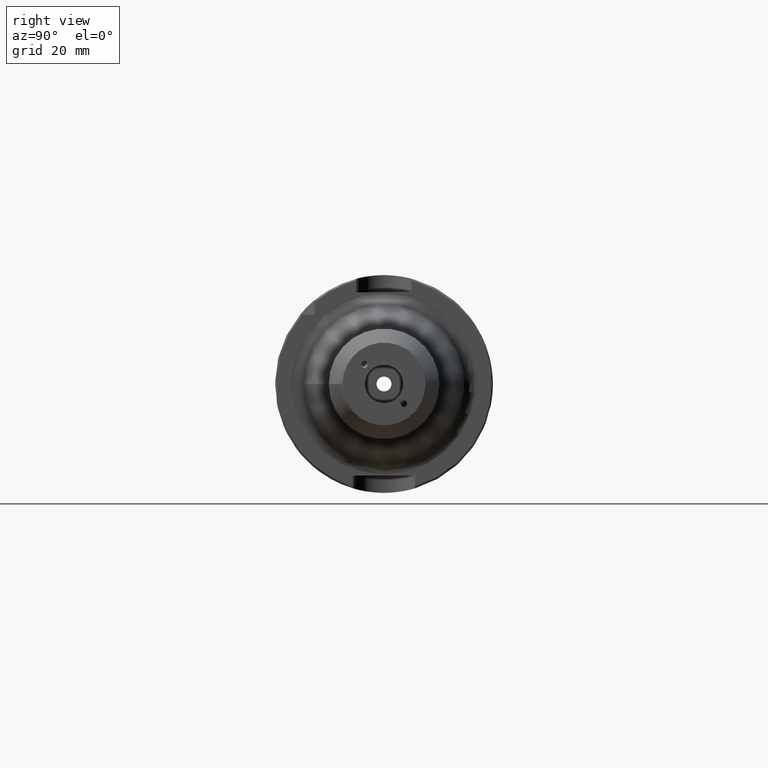
[diagram: clean part render]
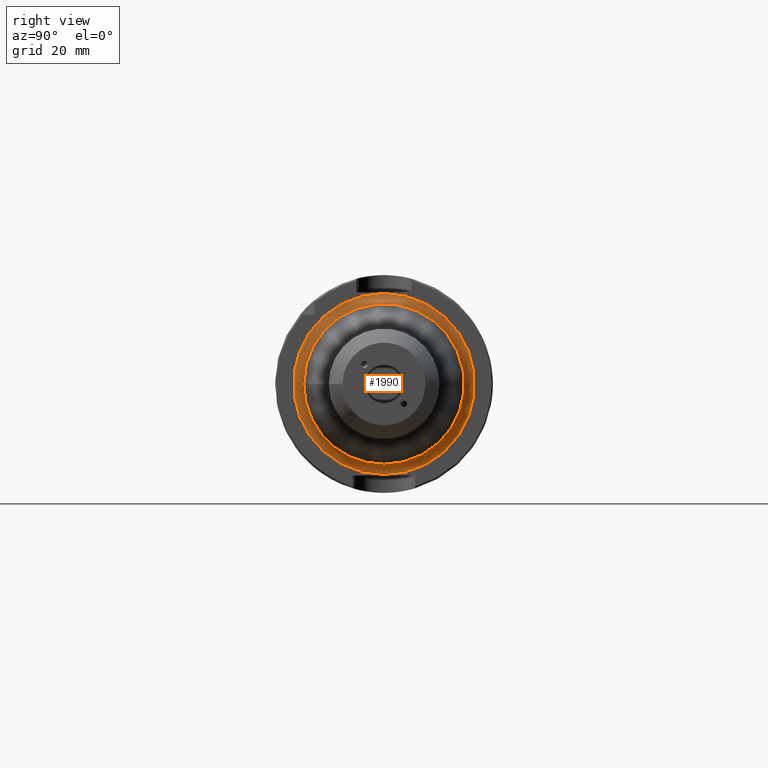
[diagram: same view with one face highlighted and labeled with its STEP entity id]
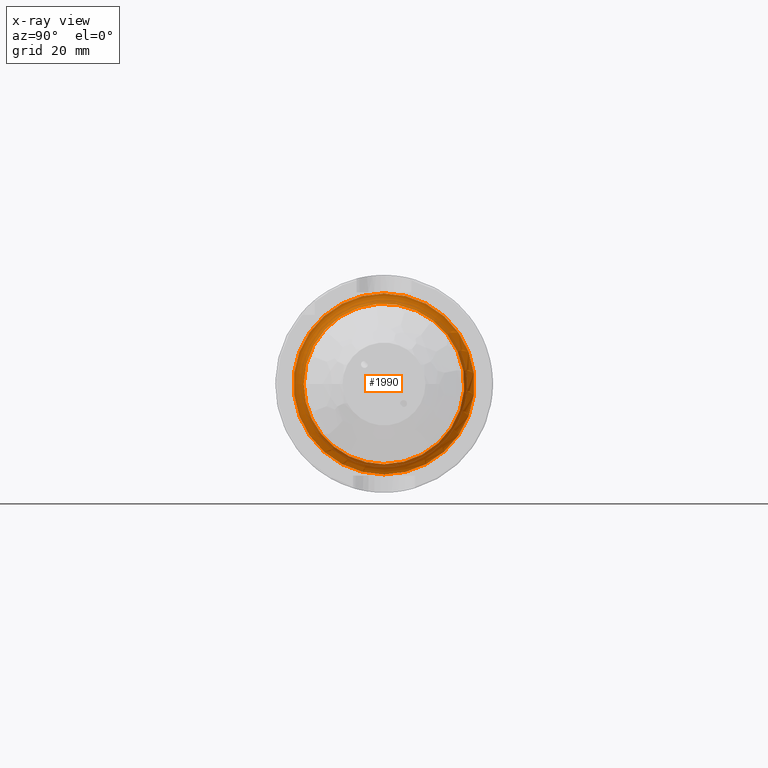
[diagram: x-ray of the same camera — body ghosted, the highlighted face saturated]
A machine part, right view. The second image highlights one B-rep face of the part: STEP entity #1990.
The next image is the same camera in x-ray: the body ghosted, the highlighted face saturated — about 0% of this face is hidden behind the body in this view.
In plain terms, the highlighted toroidal blend (fillet) surface has major radius 26.1971 mm and minor (blend) radius 3 mm.
Its self-contained STEP definition (entity closure, byte-faithful):
#144=TOROIDAL_SURFACE('',#2137,26.1970652873778,3.);
#216=FACE_OUTER_BOUND('',#336,.T.);
#336=EDGE_LOOP('',(#1348,#1349,#1350,#1351,#1352));
#689=CIRCLE('',#2138,23.2262610811531);
#690=CIRCLE('',#2139,3.);
#691=CIRCLE('',#2140,26.1970652873778);
#692=CIRCLE('',#2141,23.2262610811531);
#817=VERTEX_POINT('',#3018);
#818=VERTEX_POINT('',#3019);
#819=VERTEX_POINT('',#3021);
#1025=EDGE_CURVE('',#817,#818,#689,.T.);
#1026=EDGE_CURVE('',#818,#819,#690,.T.);
#1027=EDGE_CURVE('',#819,#819,#691,.T.);
#1028=EDGE_CURVE('',#818,#817,#692,.T.);
#1348=ORIENTED_EDGE('',*,*,#1025,.T.);
#1349=ORIENTED_EDGE('',*,*,#1026,.T.);
#1350=ORIENTED_EDGE('',*,*,#1027,.T.);
#1351=ORIENTED_EDGE('',*,*,#1026,.F.);
#1352=ORIENTED_EDGE('',*,*,#1028,.T.);
#1990=ADVANCED_FACE('',(#216),#144,.F.);
#2137=AXIS2_PLACEMENT_3D('',#3017,#2403,#2404);
#2138=AXIS2_PLACEMENT_3D('',#3020,#2405,#2406);
#2139=AXIS2_PLACEMENT_3D('',#3022,#2407,#2408);
#2140=AXIS2_PLACEMENT_3D('',#3023,#2409,#2410);
#2141=AXIS2_PLACEMENT_3D('',#3024,#2411,#2412);
#2403=DIRECTION('center_axis',(-1.,0.,0.));
#2404=DIRECTION('ref_axis',(0.,0.,1.));
#2405=DIRECTION('center_axis',(-1.,0.,0.));
#2406=DIRECTION('ref_axis',(0.,-1.,-1.22464679914735E-16));
#2407=DIRECTION('center_axis',(0.,-1.,1.22464679914735E-16));
#2408=DIRECTION('ref_axis',(0.,-1.22464679914735E-16,-1.));
#2409=DIRECTION('center_axis',(1.,0.,0.));
#2410=DIRECTION('ref_axis',(0.,-1.,-1.22464679914735E-16));
#2411=DIRECTION('center_axis',(-1.,0.,0.));
#2412=DIRECTION('ref_axis',(0.,-1.,-1.22464679914735E-16));
#3017=CARTESIAN_POINT('Origin',(29.,0.,0.));
#3018=CARTESIAN_POINT('',(28.5824806971198,-23.2262610811531,-2.84439662891949E-15));
#3019=CARTESIAN_POINT('',(28.5824806971198,-2.84439662891949E-15,-23.2262610811531));
#3020=CARTESIAN_POINT('Origin',(28.5824806971198,0.,0.));
#3021=CARTESIAN_POINT('',(26.,-3.20821521512415E-15,-26.1970652873778));
#3022=CARTESIAN_POINT('Origin',(29.,-3.20821521512415E-15,-26.1970652873778));
#3023=CARTESIAN_POINT('Origin',(26.,0.,0.));
#3024=CARTESIAN_POINT('Origin',(28.5824806971198,0.,0.));